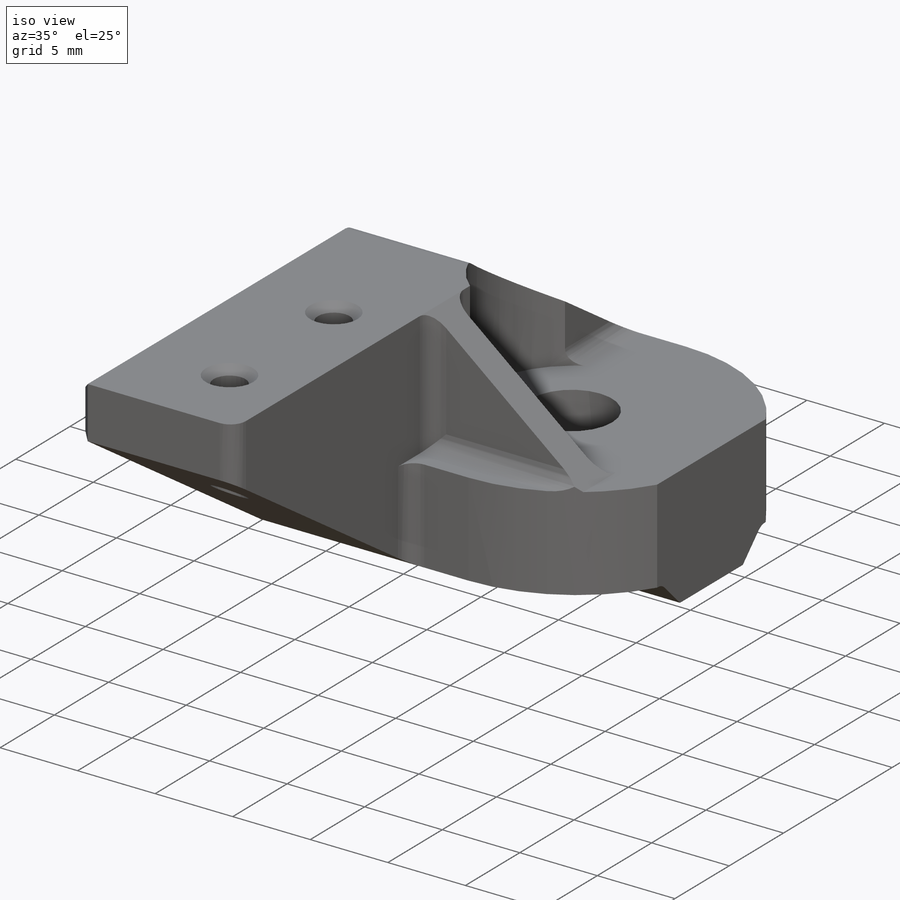
[diagram: iso view]
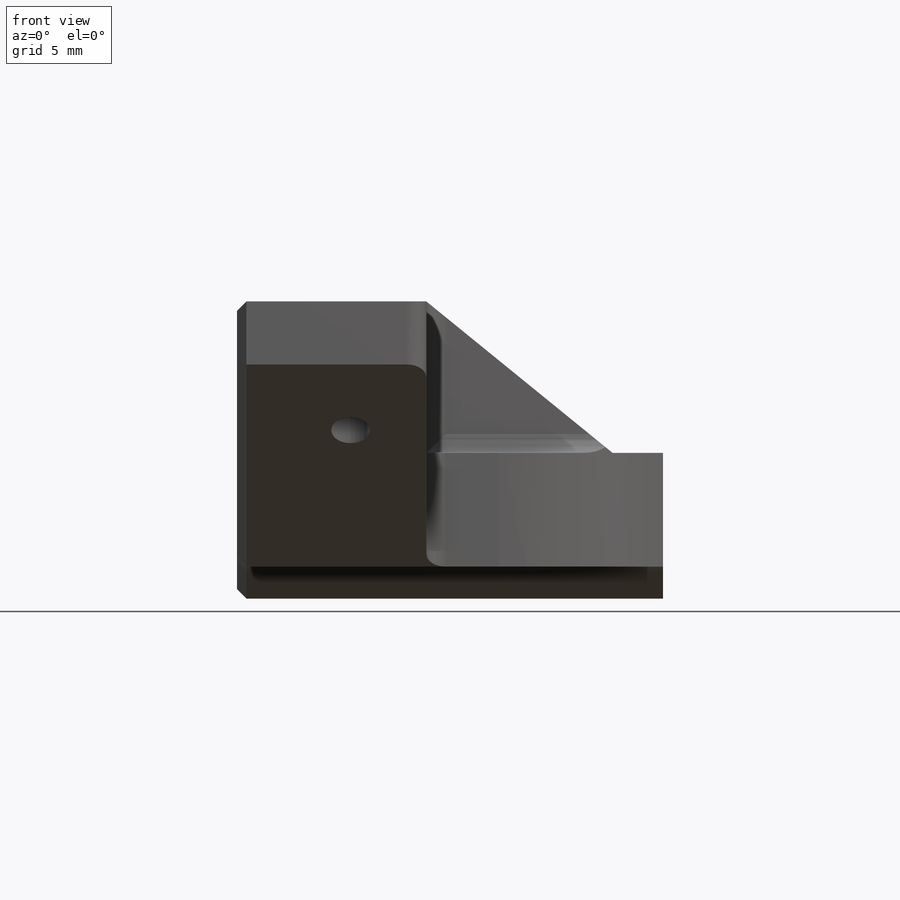
[diagram: front view]
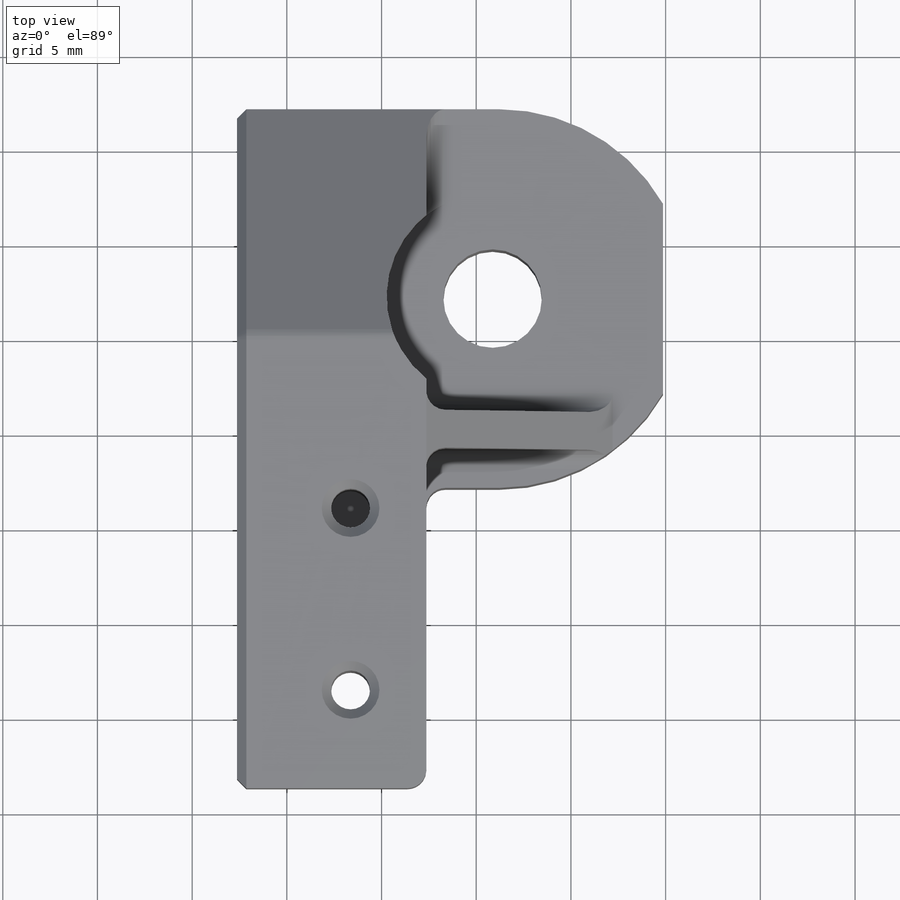
[diagram: top view]
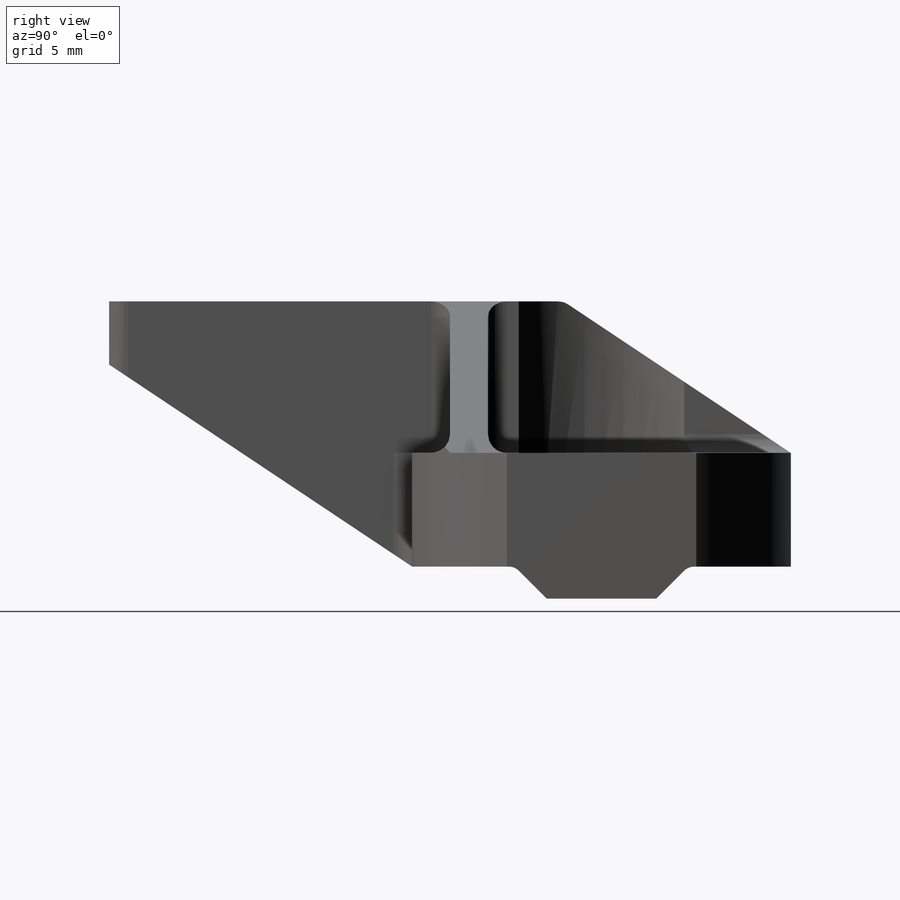
[diagram: right view]
SOLIDWORKS PART (.sldprt)
format: sldprt  version: not decoded by parser v0  size: 460,800 bytes
history: native  units: mm
features: sketch x10, cut_extrude x6, extrude x3, chamfer x2, material x1, plane x1, fillet x1 (+12 scaffold rows collapsed)
feature tree (36):
  scaffold x12  (default folders/planes/origin — collapsed)
  material  "Material <not specified>"
  sketch  "Sketch1"  dims[c1.D2=~2.373018mm c1.D3=20.0mm c2.D2=6.0mm c2.D3=5.78mm c2.D1=0.0mm]
  extrude  "Boss-Extrude1"  Depth=22.5mm
  sketch  "Sketch2"  dims[c1.D1=~9.115659mm c1.D2=9.0mm c1.D3=22.5mm c1.D4=~1.657802mm c2.D3=0.0mm]
  cut_extrude  "Cut-Extrude1"  [1 undecoded]
  sketch  "Sketch8"  dims[c1.D1=6.0mm c1.D2=~8.469932mm c2.D1=10.0mm]
  extrude  "Boss-Extrude2"  Depth=16mm
  sketch  "Sketch7"  dims[c1.D1=~4.695847mm c1.D5=2.05mm c1.D6=2.05mm c2.D1=6.0mm c2.D2=6.0mm c2.D3=9.6mm c2.D4=5.2mm c3.D1=16.5mm c3.D2=16.5mm c3.D4=3.2mm c3.D7=5.2mm]
  cut_extrude  "Cut-Extrude3"  Depth=0.1mm
  sketch  "Sketch10"  dims[D2=~22.735987mm D1=0.0mm]
  extrude  "Boss-Extrude3"  Depth=8mm
  sketch  "Sketch9"  dims[D1=10.0mm]
  cut_extrude  "Cut-Extrude4"  [1 undecoded]
  sketch  "Sketch12"  dims[D1=3.0mm]
  cut_extrude  "Cut-Extrude5"  [1 undecoded]
  sketch  "Sketch13"  dims[D1=12.0mm]
  cut_extrude  "Cut-Extrude6"  [1 undecoded]
  plane  "Plane1"  Offset=2mm
  sketch  "Sketch14"  dims[c1.D1=~3.279236mm c2.D1=2.0mm]
  sketch  "Sketch15"  dims[D1=~4.98096mm]
  cut_extrude  "Cut-Extrude7"  [1 undecoded]
  fillet  "Fillet1"  Radius=1mm
  chamfer  "Chamfer1"  Distance=0.5mm Angle=45deg
  chamfer  "Chamfer2"  Distance=0.5mm Angle=45deg
decode coverage: 17 of 22 modeling features carry decoded parameters
note: ~ marks probable driven/reference dimensions
note: 5 parameter values undecoded
summary: no parameter record found for 5 features
note: suppression state not decoded; provenance and decode notes live in map.json
